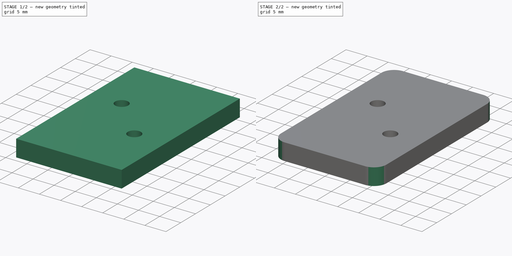
[diagram: build sequence overview — one tinted view per stage of 2, left to right]
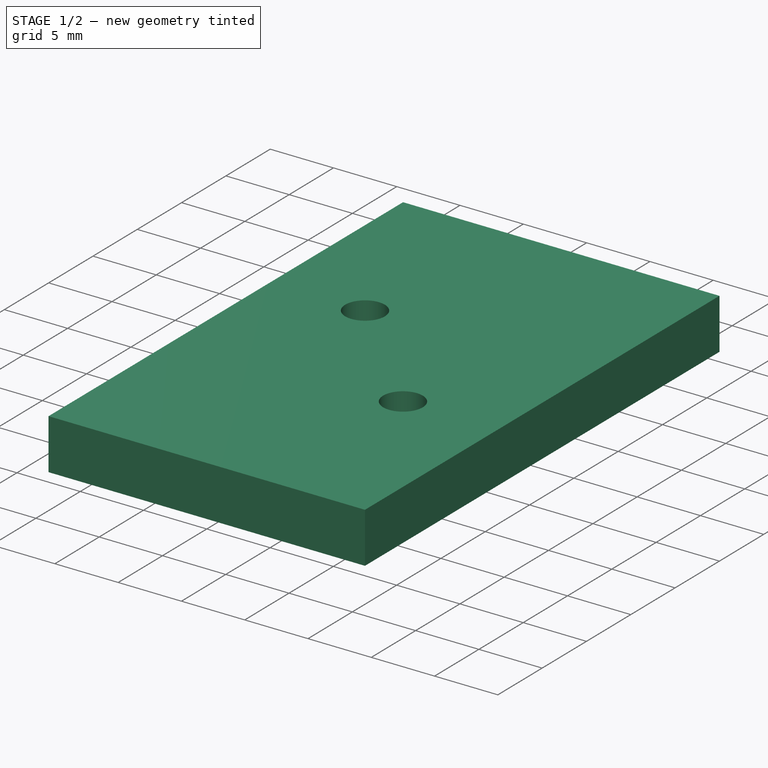
[diagram: stage 1 of 2 — iso view after this stage's code; geometry added in this stage tinted green]
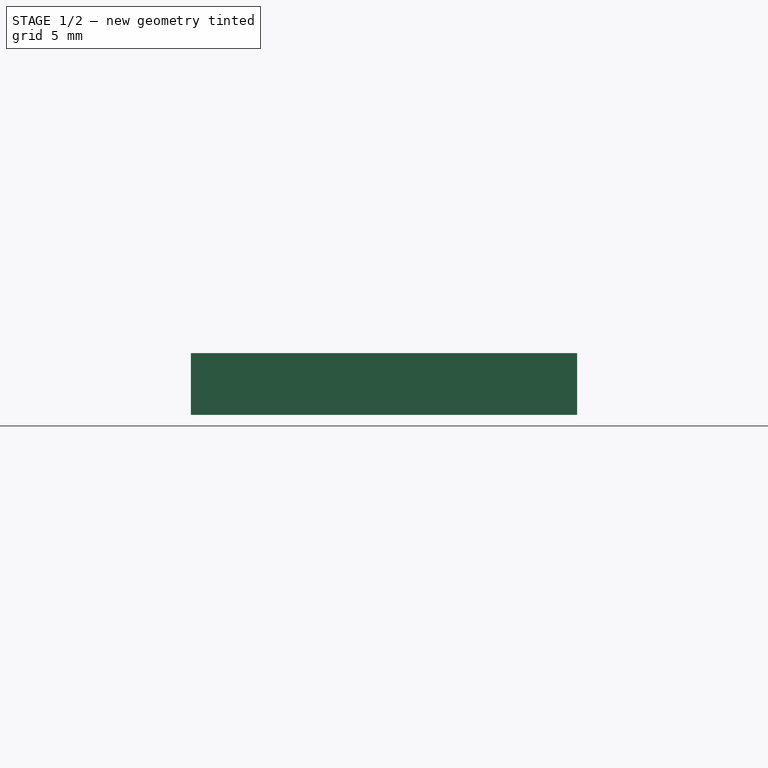
[diagram: stage 1 of 2 — front view after this stage's code; geometry added in this stage tinted green]
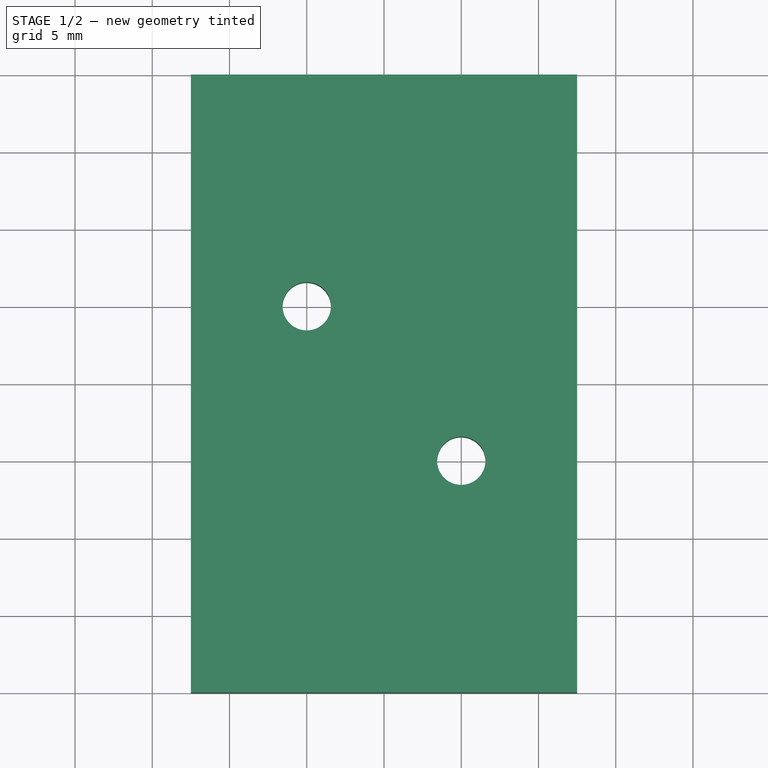
[diagram: stage 1 of 2 — top view after this stage's code; geometry added in this stage tinted green]
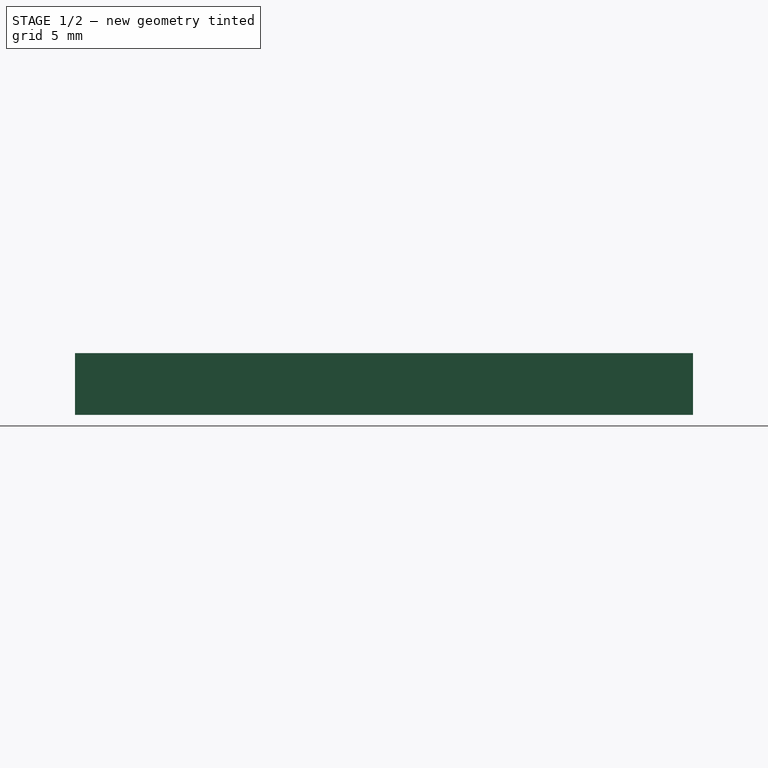
[diagram: stage 1 of 2 — right view after this stage's code; geometry added in this stage tinted green]
FCSTD DOCUMENT  (FreeCAD 0.19R24276 (Git))
Label: plate_25x40_h4
License: All rights reserved
LicenseURL: http://en.wikipedia.org/wiki/All_rights_reserved
objects: Sketcher::SketchObject×1, PartDesign::Pad×1, PartDesign::Fillet×1, PartDesign::Body×1
note: 6 computed .brp shape members not serialized (recipe doc carries the construction recipe); baked Part::Feature solids carry a one-line shape summary decoded from their .brp

FEATURE [Sketcher::SketchObject] Sketch  label="Sketch_25x40"
  FullyConstrained = false
  MapMode = 5
  Support = -> [XY_Plane]
  sketch-geometry (19):
    g0: LineSegment StartX=0 StartY=0 StartZ=0 EndX=130 EndY=0 EndZ=0
    g1: LineSegment StartX=130 StartY=0 StartZ=0 EndX=130 EndY=40 EndZ=0
    g2: LineSegment StartX=130 StartY=40 StartZ=0 EndX=0 EndY=40 EndZ=0
    g3: LineSegment StartX=0 StartY=40 StartZ=0 EndX=0 EndY=0 EndZ=0
    g4: Circle CenterX=20 CenterY=25 CenterZ=0 NormalX=0 NormalY=0 NormalZ=1 AngleXU=0 Radius=1.5625
    g5: LineSegment StartX=20 StartY=25 StartZ=0 EndX=115.734 EndY=25 EndZ=0
    g6: Circle CenterX=40 CenterY=25 CenterZ=0 NormalX=0 NormalY=0 NormalZ=1 AngleXU=0 Radius=1.5625
    g7: LineSegment StartX=8.99397 StartY=15 StartZ=0 EndX=112.189 EndY=15 EndZ=0
    g8: Circle CenterX=30 CenterY=15 CenterZ=0 NormalX=0 NormalY=0 NormalZ=1 AngleXU=0 Radius=1.5625
    g9: Circle CenterX=50 CenterY=15 CenterZ=0 NormalX=0 NormalY=0 NormalZ=1 AngleXU=0 Radius=1.5625
    g10: LineSegment StartX=65 StartY=56.2461 StartZ=0 EndX=65 EndY=0 EndZ=0
    g11: Circle CenterX=110 CenterY=25 CenterZ=0 NormalX=0 NormalY=0 NormalZ=1 AngleXU=0 Radius=1.5625
    g12: Circle CenterX=90 CenterY=25 CenterZ=0 NormalX=0 NormalY=0 NormalZ=1 AngleXU=0 Radius=1.5625
    g13: Circle CenterX=100 CenterY=15 CenterZ=0 NormalX=0 NormalY=0 NormalZ=1 AngleXU=0 Radius=1.5625
    g14: Circle CenterX=80 CenterY=15 CenterZ=0 NormalX=0 NormalY=0 NormalZ=1 AngleXU=0 Radius=1.5625
    g15: LineSegment StartX=12.5 StartY=0 StartZ=0 EndX=12.5 EndY=40 EndZ=0
    g16: LineSegment StartX=37.5 StartY=0 StartZ=0 EndX=37.5 EndY=40 EndZ=0
    g17: LineSegment StartX=12.5 StartY=40 StartZ=0 EndX=37.5 EndY=40 EndZ=0
    g18: LineSegment StartX=12.5 StartY=0 StartZ=0 EndX=37.5 EndY=0 EndZ=0
  constraints (45):
    c: Coincident(g0,g1)
    c: Coincident(g1,g2)
    c: Coincident(g2,g3)
    c: Coincident(g3,g0)
    c: Horizontal(g0)
    c: Horizontal(g2)
    c: Vertical(g1)
    c: Vertical(g3)
    c: Coincident(g0,g-1)
    c: DistanceX(g0,g0) = 130
    c: DistanceY(g3,g3) = 40
    c: Coincident(g5,g4)
    c: Horizontal(g5)
    c: DistanceX(g0,g4) = 20
    c: DistanceY(g0,g4) = 25
    c: PointOnObject(g6,g5)
    c: DistanceX(g4,g6) = 20
    c: Equal(g4,g6)
    c: Horizontal(g7)
    c: DistanceY(g0,g7) = 15
    c: PointOnObject(g8,g7)
    c: PointOnObject(g9,g7)
    c: DistanceX(g4,g8) = 10
    c: DistanceX(g8,g9) = 20
    c: Equal(g4,g8)
    c: Equal(g8,g9)
    c: Vertical(g10)
    c: Symmetric(g0,g0,g10)
    c: Diameter(g11) = 3.125
    c: Equal(g11,g12)
    c: Equal(g11,g13)
    c: Equal(g13,g14)
    c: Equal(g6,g11)
    c: Vertical(g15)
    c: Vertical(g16)
    c: PointOnObject(g15,g0)
    c: PointOnObject(g16,g0)
    c: DistanceX(g15,g16) = 25
    c: DistanceX(g15,g4) = 7.5
    c: PointOnObject(g15,g2)
    c: PointOnObject(g16,g2)
    c: Coincident(g17,g15)
    c: Coincident(g18,g15)
    c: Coincident(g18,g16)
    c: Coincident(g17,g16)
FEATURE [PartDesign::Pad] Pad  label="Pad_h4"
  Direction = (1,1,1)
  Length = 4
  Length2 = 100
  Profile = -> Sketch
  Type = 0
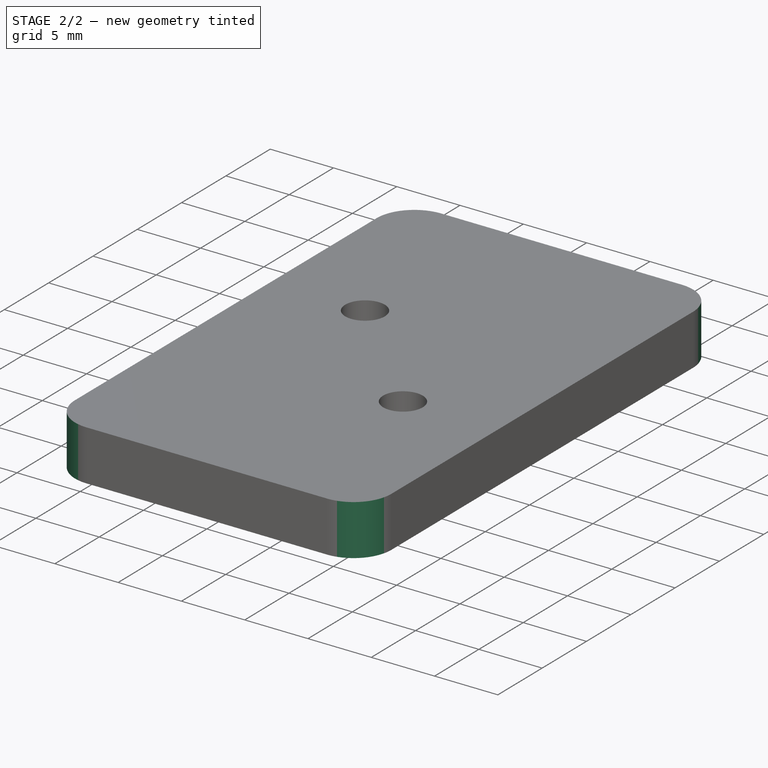
[diagram: stage 2 of 2 — iso view after this stage's code; geometry added in this stage tinted green]
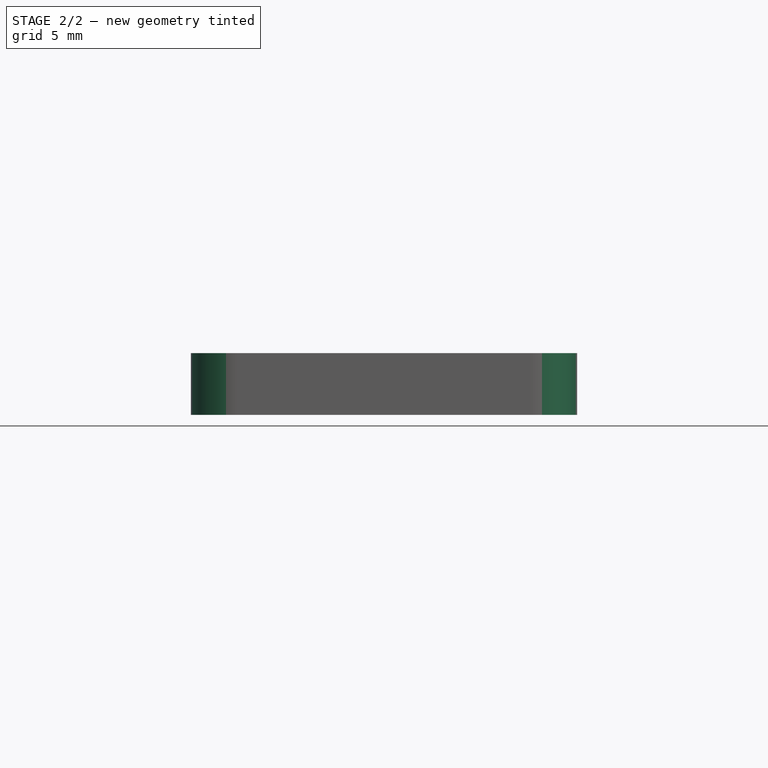
[diagram: stage 2 of 2 — front view after this stage's code; geometry added in this stage tinted green]
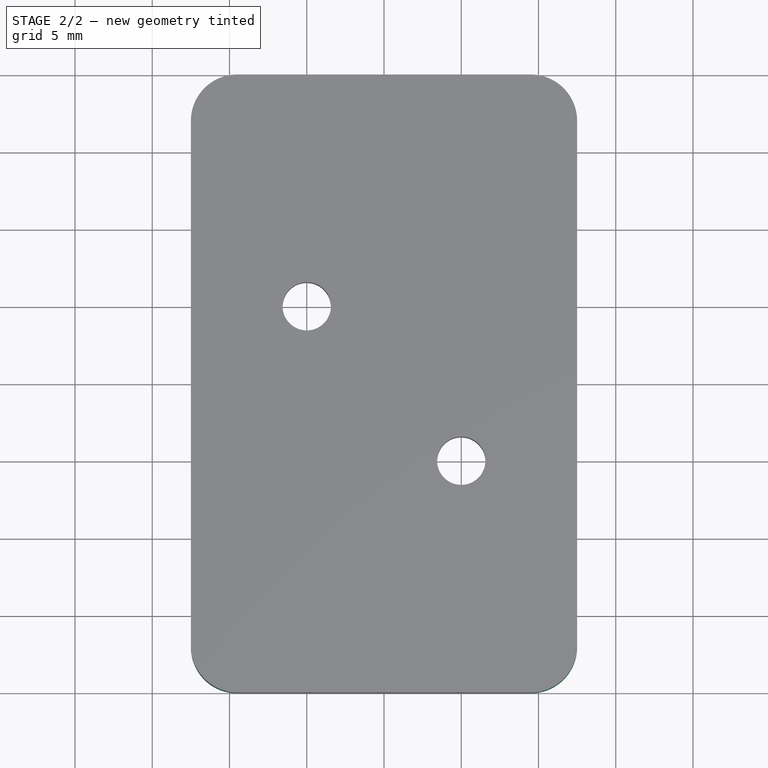
[diagram: stage 2 of 2 — top view after this stage's code; geometry added in this stage tinted green]
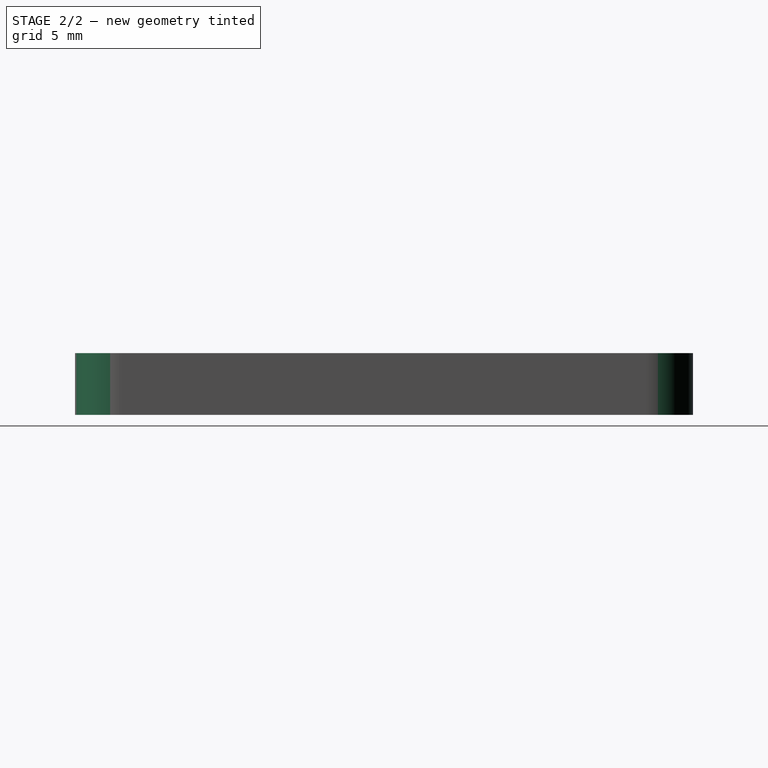
[diagram: stage 2 of 2 — right view after this stage's code; geometry added in this stage tinted green]
FEATURE [PartDesign::Fillet] Fillet  label="Fillet_r3"
  Base = -> Pad [Edge1,Edge2,Edge5,Edge8]
  BaseFeature = -> Pad
  Radius = 3
  SupportTransform = false
FEATURE [PartDesign::Body] Body
  Group = -> [Sketch,Pad,Fillet]
  Origin = -> Origin
  Tip = -> Fillet
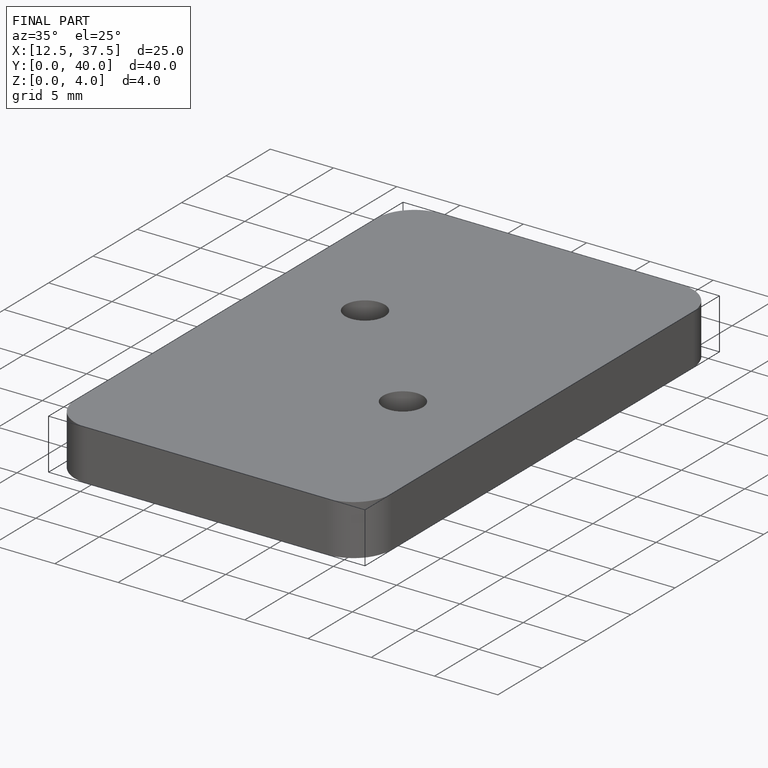
[diagram: finished part — iso view with bounding-box wireframe]
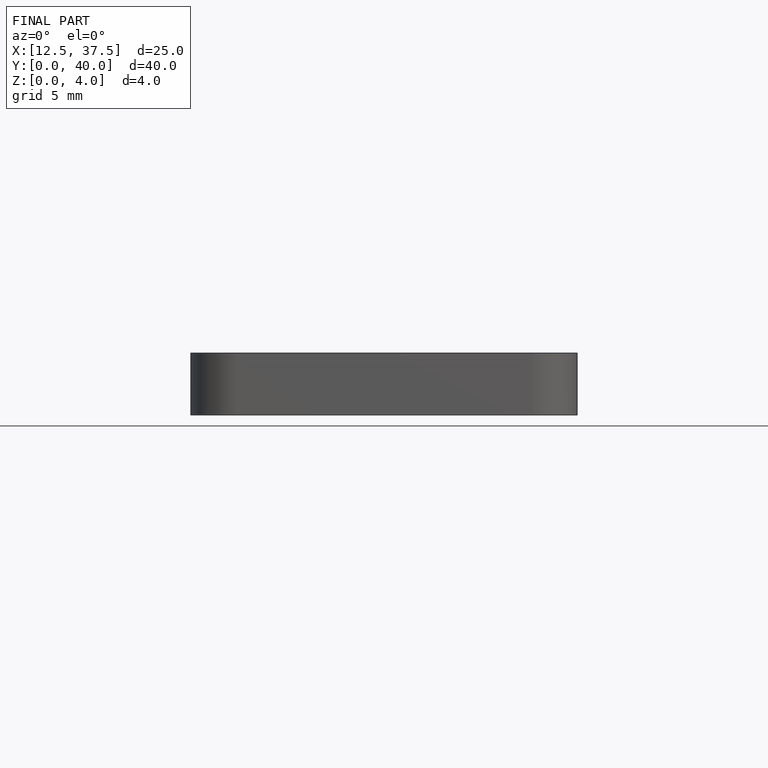
[diagram: finished part — front view with bounding-box wireframe]
